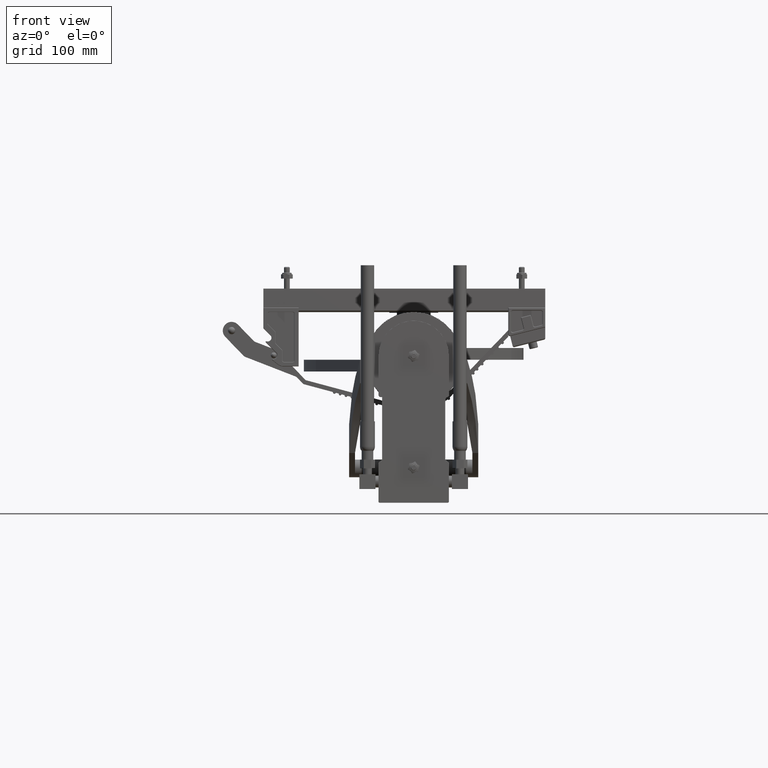
[diagram: clean part render]
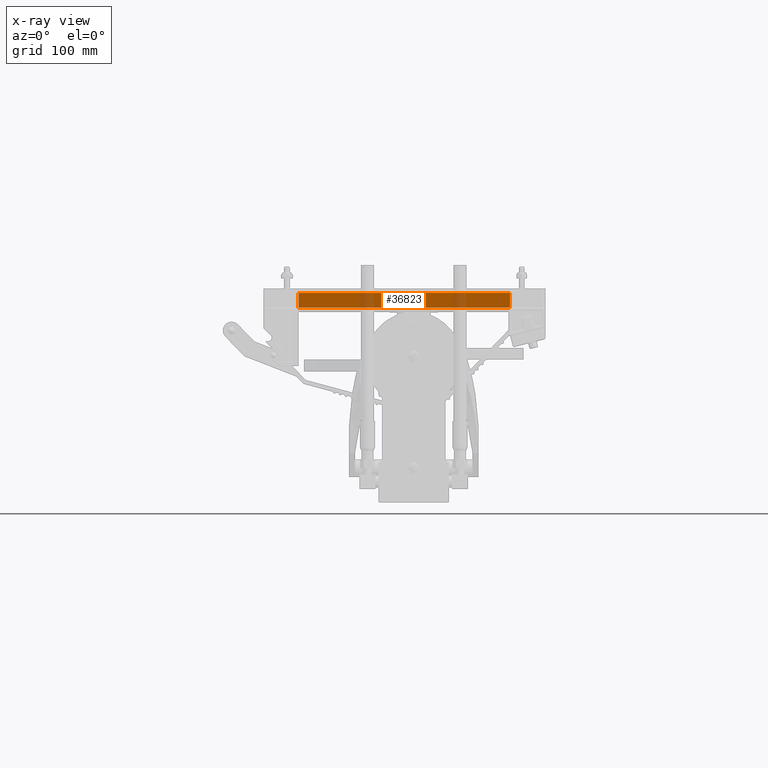
[diagram: x-ray — body ghosted, one internal face saturated and labeled with its STEP entity id]
A machine part, front view, then the same camera in x-ray: the body is ghosted and one INTERNAL B-rep face — a face not visible from any outside direction — is saturated and labeled: STEP entity #36823.
In plain terms, the highlighted planar face has unit normal (0, -0.9344, -0.3561).
Its self-contained STEP definition (entity closure, byte-faithful):
#750 = EDGE_LOOP ( 'NONE', ( #39925, #39926, #39927, #39928 ) ) ;
#9639 = FACE_OUTER_BOUND ( 'NONE', #750, .T. ) ;
#12374 = CARTESIAN_POINT ( 'NONE',  ( 0.2380000000000001300, -0.8125000000000000000, 4.500000000000000000 ) ) ;
#12384 = PLANE ( 'NONE',  #13840 ) ;
#12395 = DIRECTION ( 'NONE',  ( 0.9344403190689470900, 0.3561197693169032600, -0.0000000000000000000 ) ) ;
#12397 = DIRECTION ( 'NONE',  ( -0.3561197693169032000, 0.9344403190689469800, 0.0000000000000000000 ) ) ;
#13840 = AXIS2_PLACEMENT_3D ( 'NONE', #12374, #12395, #12397 ) ;
#30180 = CARTESIAN_POINT ( 'NONE',  ( 4.370956789862821100E-015, -0.1880000000000018000, -4.500000000000000000 ) ) ;
#30188 = CARTESIAN_POINT ( 'NONE',  ( 0.2380000000000001300, -0.8125000000000000000, -4.500000000000000000 ) ) ;
#30189 = CARTESIAN_POINT ( 'NONE',  ( 4.370956789862821100E-015, -0.1880000000000018000, 4.500000000000000000 ) ) ;
#30202 = CARTESIAN_POINT ( 'NONE',  ( 0.2380000000000001300, -0.8125000000000000000, 4.500000000000000000 ) ) ;
#34098 = CARTESIAN_POINT ( 'NONE',  ( 0.2380000000000001300, -0.8125000000000000000, 4.500000000000000000 ) ) ;
#34099 = DIRECTION ( 'NONE',  ( 0.3561197693169032000, -0.9344403190689469800, -0.0000000000000000000 ) ) ;
#34104 = CARTESIAN_POINT ( 'NONE',  ( 0.2380000000000001300, -0.8125000000000000000, -4.500000000000000000 ) ) ;
#34114 = CARTESIAN_POINT ( 'NONE',  ( 0.2380000000000001300, -0.8125000000000000000, 4.500000000000000000 ) ) ;
#34115 = DIRECTION ( 'NONE',  ( -0.0000000000000000000, -0.0000000000000000000, -1.000000000000000000 ) ) ;
#34116 = CARTESIAN_POINT ( 'NONE',  ( 4.370956789862821100E-015, -0.1880000000000018000, 4.500000000000000000 ) ) ;
#34117 = DIRECTION ( 'NONE',  ( 0.3561197693169032000, -0.9344403190689469800, -0.0000000000000000000 ) ) ;
#34119 = DIRECTION ( 'NONE',  ( -0.0000000000000000000, -0.0000000000000000000, -1.000000000000000000 ) ) ;
#36823 = ADVANCED_FACE ( 'NONE', ( #9639 ), #12384, .F. ) ;
#39459 = VERTEX_POINT ( 'NONE', #30180 ) ;
#39467 = VERTEX_POINT ( 'NONE', #30188 ) ;
#39468 = VERTEX_POINT ( 'NONE', #30189 ) ;
#39481 = VERTEX_POINT ( 'NONE', #30202 ) ;
#39925 = ORIENTED_EDGE ( 'NONE', *, *, #48942, .T. ) ;
#39926 = ORIENTED_EDGE ( 'NONE', *, *, #48939, .F. ) ;
#39927 = ORIENTED_EDGE ( 'NONE', *, *, #48923, .F. ) ;
#39928 = ORIENTED_EDGE ( 'NONE', *, *, #48944, .T. ) ;
#43250 = LINE ( 'NONE', #34116, #43295 ) ;
#43261 = LINE ( 'NONE', #34104, #43293 ) ;
#43264 = LINE ( 'NONE', #34098, #43265 ) ;
#43265 = VECTOR ( 'NONE', #34099, 39.37007874015748900 ) ;
#43291 = LINE ( 'NONE', #34114, #43292 ) ;
#43292 = VECTOR ( 'NONE', #34115, 39.37007874015748100 ) ;
#43293 = VECTOR ( 'NONE', #34117, 39.37007874015748900 ) ;
#43295 = VECTOR ( 'NONE', #34119, 39.37007874015748100 ) ;
#48923 = EDGE_CURVE ( 'NONE', #39468, #39481, #43264, .T. ) ;
#48939 = EDGE_CURVE ( 'NONE', #39481, #39467, #43291, .T. ) ;
#48942 = EDGE_CURVE ( 'NONE', #39459, #39467, #43261, .T. ) ;
#48944 = EDGE_CURVE ( 'NONE', #39468, #39459, #43250, .T. ) ;